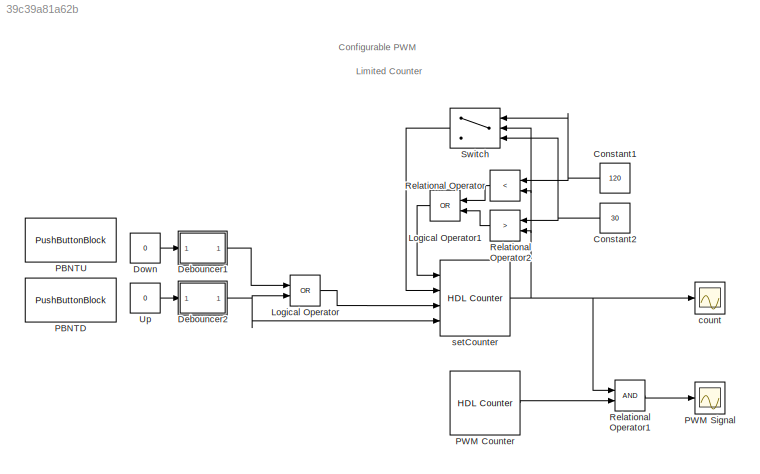
MODEL slx_39c39a81a62b
KIND model
CONFIG AbsTol = auto
CONFIG EnableMultiTasking = off
CONFIG FixedStep = 1
CONFIG MaxStep = auto
CONFIG MinStep = auto
CONFIG RelTol = 1e-3
CONFIG SampleTimeConstraint = Unconstrained
CONFIG Solver = FixedStepDiscrete
CONFIG SolverName = FixedStepDiscrete
CONFIG StartTime = 0.0
CONFIG StopTime = 1000000
BLOCK [Constant] Constant1
  SampleTime = 1
  Value = 120
BLOCK [Constant] Constant2
  SampleTime = 1
  Value = 30
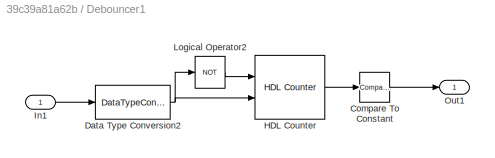
BLOCK [SubSystem] Debouncer1
  Ports = [1, 1]
  RequestExecContextInheritance = off
BLOCK [Reference] Debouncer1/Compare To Constant  REF=simulink/Logic and Bit
Operations/Compare
To Constant
  Ports = [1, 1]
  SourceBlock = simulink/Logic and Bit\nOperations/Compare\nTo Constant
  SourceProductBaseCode = SL
  SourceProductName = Simulink
  SourceType = Compare To Constant
BLOCK [DataTypeConversion] Debouncer1/Data Type Conversion2
  OutDataTypeStr = boolean
  RndMeth = Floor
  SaturateOnIntegerOverflow = off
BLOCK [Reference] Debouncer1/HDL Counter   REF=hdlsllib/Sources/HDL Counter
  Ports = [2, 1]
  SourceBlock = hdlsllib/Sources/HDL Counter
  SourceProductBaseCode = HD
  SourceProductName = HDL Coder
  SourceType = HDL Counter
BLOCK [Inport] Debouncer1/In1
  IconDisplay = Port number
BLOCK [Logic] Debouncer1/Logical Operator2
  AllPortsSameDT = off
  Operator = NOT
  OutDataTypeStr = boolean
  Ports = [1, 1]
BLOCK [Outport] Debouncer1/Out1
  IconDisplay = Port number
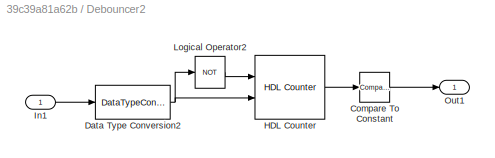
BLOCK [SubSystem] Debouncer2
  Ports = [1, 1]
  RequestExecContextInheritance = off
BLOCK [Reference] Debouncer2/Compare To Constant  REF=simulink/Logic and Bit
Operations/Compare
To Constant
  Ports = [1, 1]
  SourceBlock = simulink/Logic and Bit\nOperations/Compare\nTo Constant
  SourceProductBaseCode = SL
  SourceProductName = Simulink
  SourceType = Compare To Constant
BLOCK [DataTypeConversion] Debouncer2/Data Type Conversion2
  OutDataTypeStr = boolean
  RndMeth = Floor
  SaturateOnIntegerOverflow = off
BLOCK [Reference] Debouncer2/HDL Counter   REF=hdlsllib/Sources/HDL Counter
  Ports = [2, 1]
  SourceBlock = hdlsllib/Sources/HDL Counter
  SourceProductBaseCode = HD
  SourceProductName = HDL Coder
  SourceType = HDL Counter
BLOCK [Inport] Debouncer2/In1
  IconDisplay = Port number
BLOCK [Logic] Debouncer2/Logical Operator2
  AllPortsSameDT = off
  Operator = NOT
  OutDataTypeStr = boolean
  Ports = [1, 1]
BLOCK [Outport] Debouncer2/Out1
  IconDisplay = Port number
BLOCK [Constant] Down
  Value = 0
BLOCK [Logic] Logical Operator
  AllPortsSameDT = off
  Operator = OR
  OutDataTypeStr = boolean
  Ports = [2, 1]
BLOCK [Logic] Logical Operator1
  AllPortsSameDT = off
  Operator = OR
  OutDataTypeStr = boolean
  Ports = [2, 1]
BLOCK [PushButtonBlock] PBNTD
  WebBlockId = 8
BLOCK [PushButtonBlock] PBNTU
  WebBlockId = 9
BLOCK [Reference] PWM Counter   REF=hdlsllib/Sources/HDL Counter
  Ports = [0, 1]
  SourceBlock = hdlsllib/Sources/HDL Counter
  SourceProductBaseCode = HD
  SourceProductName = HDL Coder
  SourceType = HDL Counter
BLOCK [Scope] PWM Signal
  Floating = off
  NumInputPorts = 1
  Ports = [1]
  ScopeSpecificationString = Simulink.scopes.TimeScopeBlockCfg('CurrentConfiguration', extmgr.ConfigurationSet(extmgr.Configuration('Core','General UI',true),extmgr.Configuration('Core','Source UI',true),extmgr.Configuration('Sources','WiredSimulink',true),extmgr.Configuration('Visuals','Time Domain',true,'SerializedDisplays',{struct('MinYLimReal','-0.125','MaxYLimReal','1.125','YLabelReal','','MinYLimMag','0.00000','MaxYLimM...<+1363ch>
BLOCK [RelationalOperator] Relational Operator
  InputSameDT = off
  Operator = <
  OutDataTypeStr = boolean
  Ports = [2, 1]
  RndMeth = Simplest
BLOCK [RelationalOperator] Relational Operator1
  InputSameDT = off
  OutDataTypeStr = boolean
  Ports = [2, 1]
  RndMeth = Simplest
BLOCK [RelationalOperator] Relational Operator2
  InputSameDT = off
  Operator = >
  OutDataTypeStr = boolean
  Ports = [2, 1]
  RndMeth = Simplest
BLOCK [Switch] Switch
  Criteria = u2 > Threshold
  InputSameDT = off
  SaturateOnIntegerOverflow = off
  Threshold = 75
BLOCK [Constant] Up
  Value = 0
BLOCK [Scope] count
  Floating = off
  NumInputPorts = 1
  Ports = [1]
  ScopeSpecificationString = Simulink.scopes.TimeScopeBlockCfg('CurrentConfiguration', extmgr.ConfigurationSet(extmgr.Configuration('Core','General UI',true),extmgr.Configuration('Core','Source UI',true),extmgr.Configuration('Sources','WiredSimulink',true,'DataLoggingVariableName','ScopeData1'),extmgr.Configuration('Visuals','Time Domain',true,'SerializedDisplays',{struct('MinYLimReal','-0.125','MaxYLimReal','1.125','YLabelRe...<+1402ch>
BLOCK [Reference] setCounter  REF=hdlsllib/Sources/HDL Counter
  Ports = [4, 1]
  SourceBlock = hdlsllib/Sources/HDL Counter
  SourceProductBaseCode = HD
  SourceProductName = HDL Coder
  SourceType = HDL Counter
ANNOTATION (root): Configurable PWM
ANNOTATION (root): Limited Counter
NET Constant1:1 -> Relational Operator:1, Switch:1
NET Constant2:1 -> Relational Operator2:1, Switch:3
LINE Debouncer1/Compare To Constant:1 -> Debouncer1/Out1:1
NET Debouncer1/Data Type Conversion2:1 -> Debouncer1/HDL Counter :2, Debouncer1/Logical Operator2:1
LINE Debouncer1/HDL Counter :1 -> Debouncer1/Compare To Constant:1
LINE Debouncer1/In1:1 -> Debouncer1/Data Type Conversion2:1
LINE Debouncer1/Logical Operator2:1 -> Debouncer1/HDL Counter :1
LINE Debouncer1:1 -> Logical Operator:1
LINE Debouncer2/Compare To Constant:1 -> Debouncer2/Out1:1
NET Debouncer2/Data Type Conversion2:1 -> Debouncer2/HDL Counter :2, Debouncer2/Logical Operator2:1
LINE Debouncer2/HDL Counter :1 -> Debouncer2/Compare To Constant:1
LINE Debouncer2/In1:1 -> Debouncer2/Data Type Conversion2:1
LINE Debouncer2/Logical Operator2:1 -> Debouncer2/HDL Counter :1
NET Debouncer2:1 -> Logical Operator:2, setCounter:4
LINE Down:1 -> Debouncer1:1
LINE Logical Operator1:1 -> setCounter:1
LINE Logical Operator:1 -> setCounter:3
LINE PWM Counter :1 -> Relational Operator1:2
LINE Relational Operator1:1 -> PWM Signal:1
LINE Relational Operator2:1 -> Logical Operator1:2
LINE Relational Operator:1 -> Logical Operator1:1
LINE Switch:1 -> setCounter:2
LINE Up:1 -> Debouncer2:1
NET setCounter:1 -> Relational Operator1:1, Relational Operator2:2, Relational Operator:2, Switch:2, count:1
note: NET lines group one-source signal fan-out (src -> all destinations, sorted); 1:1 wires keep LINE
